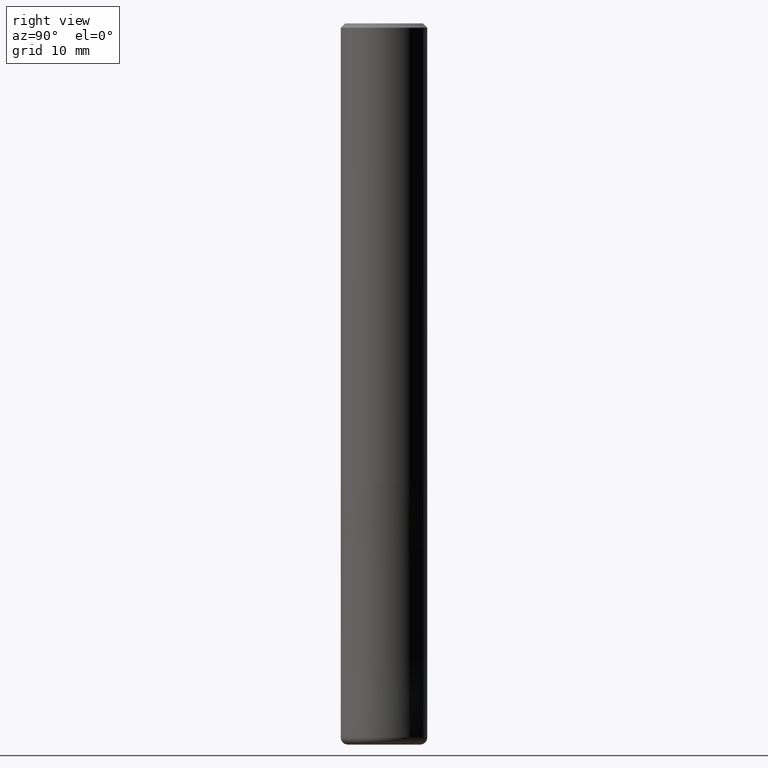
[diagram: clean part render]
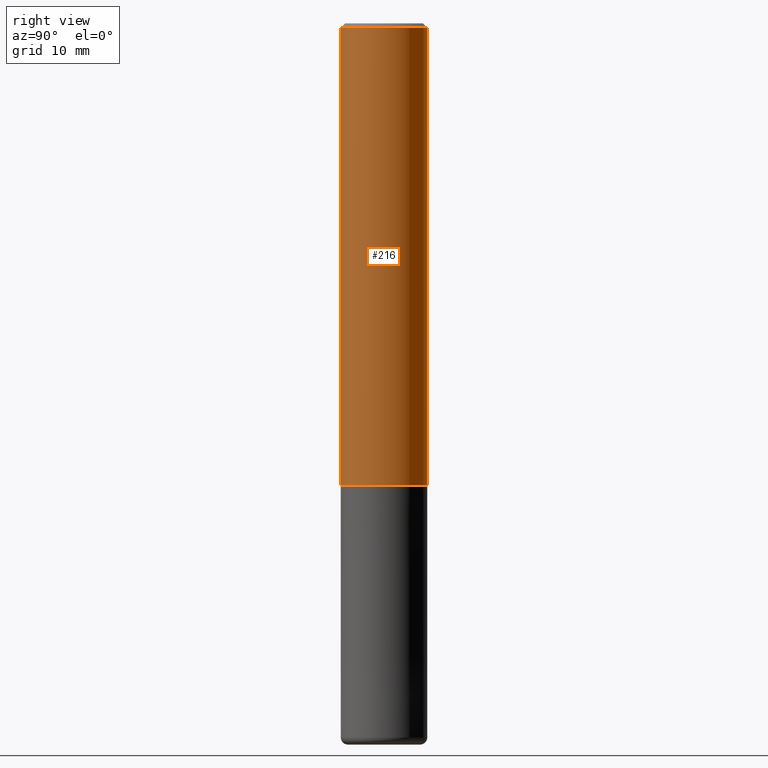
[diagram: same view with one face highlighted and labeled with its STEP entity id]
A machine part, right view. The second image highlights one B-rep face of the part: STEP entity #216.
In plain terms, the highlighted cylindrical surface (partial cylindrical patch) has radius 6 mm, axis along (-0, -0, 1).
Its self-contained STEP definition (entity closure, byte-faithful):
#138=EDGE_CURVE('',#184,#210,#306,.T.);
#176=EDGE_CURVE('',#236,#184,#349,.T.);
#184=VERTEX_POINT('',#359);
#204=EDGE_CURVE('',#210,#218,#381,.T.);
#210=VERTEX_POINT('',#390);
#216=ADVANCED_FACE('',(#396),#397,.T.);
#218=VERTEX_POINT('',#399);
#228=EDGE_CURVE('',#236,#218,#409,.T.);
#236=VERTEX_POINT('',#417);
#306=CIRCLE('',#484,6.0);
#349=LINE('',#540,#541);
#359=CARTESIAN_POINT('',(0.0,6.0,-64.0));
#381=LINE('',#581,#582);
#390=CARTESIAN_POINT('',(7.34763812293426E-016,-6.0,-64.0));
#396=FACE_OUTER_BOUND('',#598,.T.);
#397=CYLINDRICAL_SURFACE('',#599,6.0);
#399=CARTESIAN_POINT('',(7.34763812293426E-016,-6.0,-0.600000000000001));
#409=CIRCLE('',#616,6.0);
#417=CARTESIAN_POINT('',(0.0,6.0,-0.600000000000001));
#484=AXIS2_PLACEMENT_3D('',#705,#706,#707);
#540=CARTESIAN_POINT('',(-7.34763812293426E-016,6.0,-32.3));
#541=VECTOR('',#760,1.0);
#581=CARTESIAN_POINT('',(7.34763812293426E-016,-6.0,-32.3));
#582=VECTOR('',#794,1.0);
#598=EDGE_LOOP('',(#815,#816,#817,#818));
#599=AXIS2_PLACEMENT_3D('',#819,#820,#821);
#616=AXIS2_PLACEMENT_3D('',#829,#830,#831);
#705=CARTESIAN_POINT('',(0.0,0.0,-64.0));
#706=DIRECTION('',(0.0,0.0,-1.0));
#707=DIRECTION('',(0.0,1.0,0.0));
#760=DIRECTION('',(0.0,0.0,-1.0));
#794=DIRECTION('',(-0.0,-0.0,1.0));
#815=ORIENTED_EDGE('',*,*,#176,.F.);
#816=ORIENTED_EDGE('',*,*,#228,.T.);
#817=ORIENTED_EDGE('',*,*,#204,.F.);
#818=ORIENTED_EDGE('',*,*,#138,.F.);
#819=CARTESIAN_POINT('',(0.0,0.0,-32.3));
#820=DIRECTION('',(-0.0,-0.0,1.0));
#821=DIRECTION('',(0.0,1.0,0.0));
#829=CARTESIAN_POINT('',(0.0,0.0,-0.600000000000001));
#830=DIRECTION('',(0.0,0.0,-1.0));
#831=DIRECTION('',(0.0,1.0,0.0));